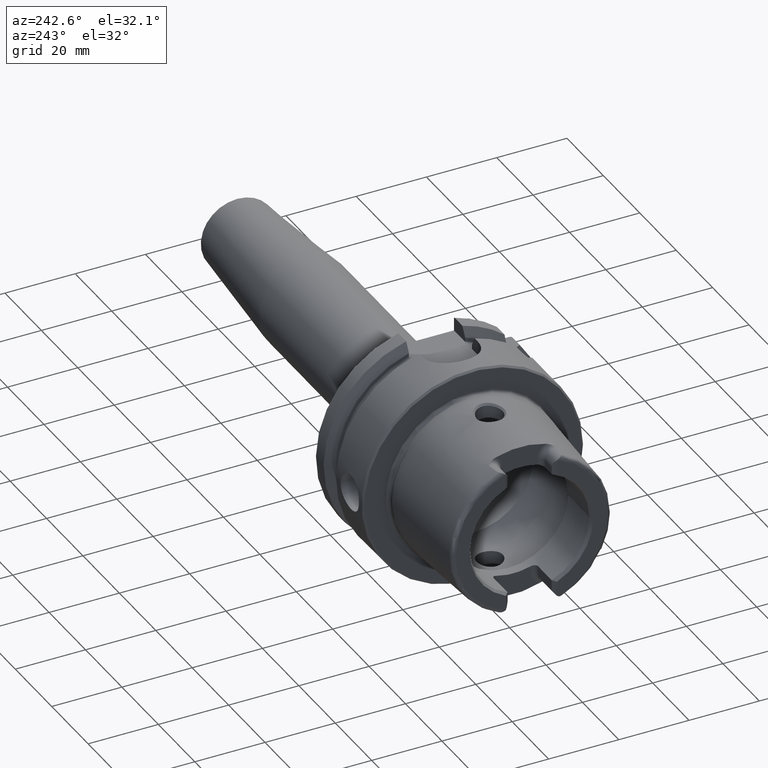
[diagram: clean part render]
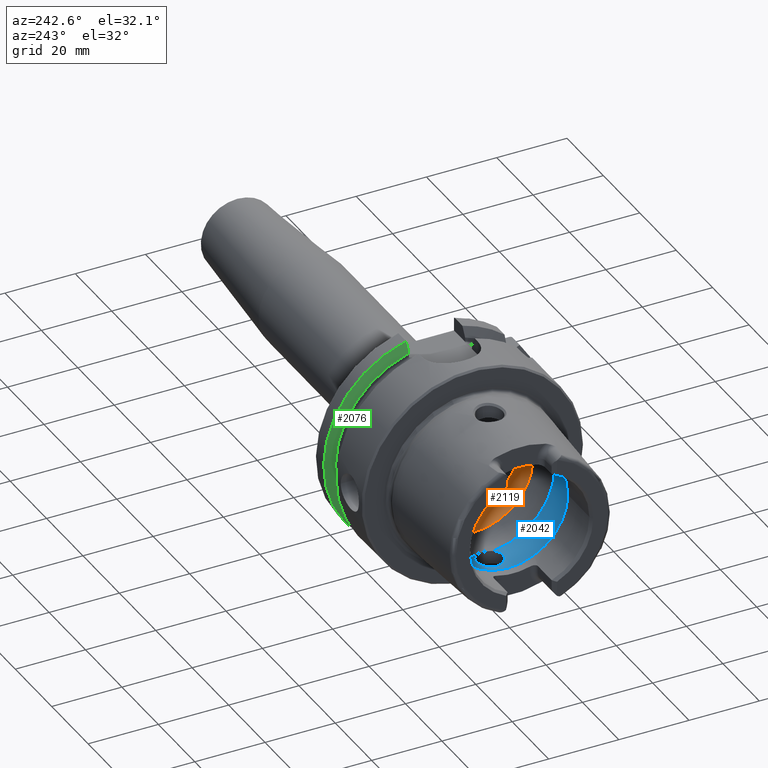
[diagram: same view with three faces highlighted in distinct colors, each labeled with its STEP entity id]
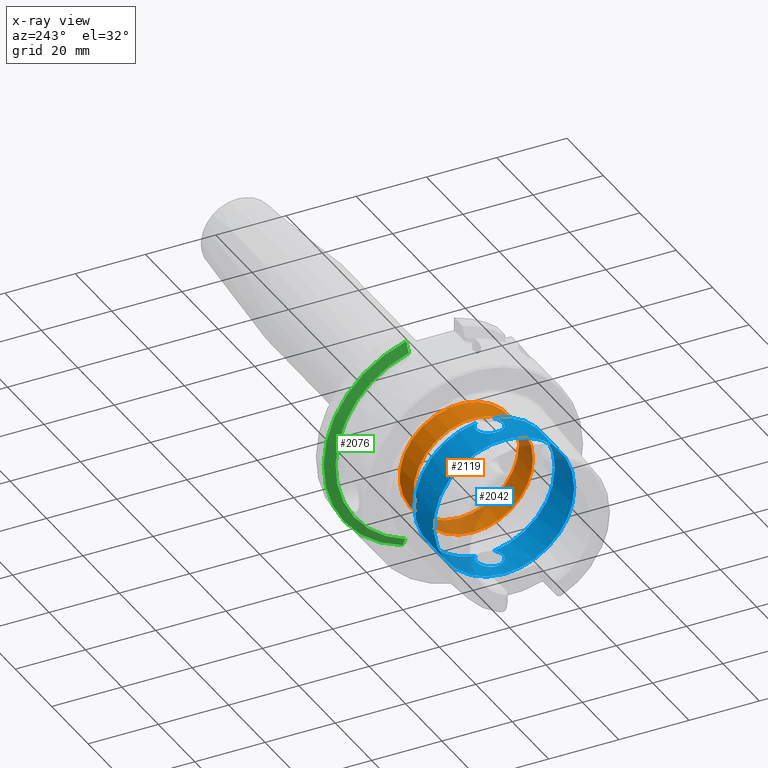
[diagram: x-ray of the same camera — body ghosted, the three highlighted faces saturated]
A machine part, auxiliary view with three faces highlighted in distinct colors.
The next image is the same camera in x-ray (body ghosted, the three faces saturated) — at least one of them is partly hidden behind the body in this view.
Their STEP definitions:

[orange] entity #2119 — the highlighted cylindrical surface (bore or boss wall) has radius 17 mm, axis along (-1, 0, 0).
#212=CYLINDRICAL_SURFACE('',#2389,17.);
#326=FACE_OUTER_BOUND('',#459,.T.);
#459=EDGE_LOOP('',(#1946,#1947,#1948,#1949,#1950,#1951));
#573=LINE('',#4481,#683);
#683=VECTOR('',#2993,17.);
#736=CIRCLE('',#2243,17.);
#737=CIRCLE('',#2244,17.);
#805=CIRCLE('',#2387,17.);
#806=CIRCLE('',#2388,17.);
#918=VERTEX_POINT('',#3835);
#919=VERTEX_POINT('',#3836);
#1016=VERTEX_POINT('',#4475);
#1017=VERTEX_POINT('',#4477);
#1159=EDGE_CURVE('',#918,#919,#736,.T.);
#1160=EDGE_CURVE('',#919,#918,#737,.T.);
#1329=EDGE_CURVE('',#1016,#1017,#805,.T.);
#1330=EDGE_CURVE('',#1017,#1016,#806,.T.);
#1331=EDGE_CURVE('',#1017,#918,#573,.T.);
#1946=ORIENTED_EDGE('',*,*,#1330,.F.);
#1947=ORIENTED_EDGE('',*,*,#1331,.T.);
#1948=ORIENTED_EDGE('',*,*,#1159,.T.);
#1949=ORIENTED_EDGE('',*,*,#1160,.T.);
#1950=ORIENTED_EDGE('',*,*,#1331,.F.);
#1951=ORIENTED_EDGE('',*,*,#1329,.F.);
#2119=ADVANCED_FACE('',(#326),#212,.F.);
#2243=AXIS2_PLACEMENT_3D('',#3837,#2642,#2643);
#2244=AXIS2_PLACEMENT_3D('',#3838,#2644,#2645);
#2387=AXIS2_PLACEMENT_3D('',#4478,#2987,#2988);
#2388=AXIS2_PLACEMENT_3D('',#4479,#2989,#2990);
#2389=AXIS2_PLACEMENT_3D('',#4480,#2991,#2992);
#2642=DIRECTION('center_axis',(-1.,0.,0.));
#2643=DIRECTION('ref_axis',(0.,0.,1.));
#2644=DIRECTION('center_axis',(-1.,0.,0.));
#2645=DIRECTION('ref_axis',(0.,0.,1.));
#2987=DIRECTION('center_axis',(-1.,0.,0.));
#2988=DIRECTION('ref_axis',(0.,0.,1.));
#2989=DIRECTION('center_axis',(-1.,0.,0.));
#2990=DIRECTION('ref_axis',(0.,0.,1.));
#2991=DIRECTION('center_axis',(-1.,0.,0.));
#2992=DIRECTION('ref_axis',(0.,1.,0.));
#2993=DIRECTION('',(-1.,0.,0.));
#3835=CARTESIAN_POINT('',(0.,-17.,2.0818995585505E-15));
#3836=CARTESIAN_POINT('',(0.,-2.0818995585505E-15,-17.));
#3837=CARTESIAN_POINT('Origin',(0.,0.,0.));
#3838=CARTESIAN_POINT('Origin',(0.,0.,0.));
#4475=CARTESIAN_POINT('',(7.67084380241115,-2.0818995585505E-15,-17.));
#4477=CARTESIAN_POINT('',(7.67084380241115,-17.,2.0818995585505E-15));
#4478=CARTESIAN_POINT('Origin',(7.67084380241115,0.,0.));
#4479=CARTESIAN_POINT('Origin',(7.67084380241115,0.,0.));
#4480=CARTESIAN_POINT('Origin',(3.83542190120557,0.,0.));
#4481=CARTESIAN_POINT('',(3.83542190120557,-17.,2.0818995585505E-15));

[blue] entity #2042 — the highlighted cylindrical surface (bore or boss wall) has radius 20 mm, axis along (-1, 0, 0).
#50=B_SPLINE_CURVE_WITH_KNOTS('',3,(#3613,#3614,#3615,#3616,#3617,#3618,
#3619,#3620,#3621,#3622,#3623,#3624,#3625,#3626,#3627,#3628,#3629,#3630,
#3631,#3632,#3633,#3634,#3635,#3636,#3637,#3638,#3639,#3640,#3641,#3642,
#3643),.UNSPECIFIED.,.F.,.F.,(4,2,2,2,2,2,2,2,2,2,2,3,2,2,4),(-1.43107314142755,
-1.4161913421645,-1.27456976724955,-1.1329481923346,-0.991326617419658,
-0.849705042504712,-0.708089569336007,-0.566474096167302,-0.424858622998598,
-0.283243149829893,-0.141621574914946,0.,0.141621574914946,0.283243149829893,
0.298124949100151),.UNSPECIFIED.);
#55=B_SPLINE_CURVE_WITH_KNOTS('',3,(#3782,#3783,#3784,#3785,#3786,#3787,
#3788,#3789,#3790,#3791,#3792,#3793,#3794,#3795,#3796,#3797,#3798,#3799,
#3800,#3801,#3802,#3803,#3804,#3805,#3806,#3807,#3808,#3809,#3810,#3811,
#3812),.UNSPECIFIED.,.F.,.F.,(4,2,2,3,2,2,2,2,2,2,2,2,2,2,4),(-0.298124949092949,
-0.283243149829893,-0.141621574914946,0.,0.141621574914946,0.283243149829893,
0.424858622998598,0.566474096167302,0.708089569336007,0.849705042504712,
0.991326617419658,1.1329481923346,1.27456976724955,1.4161913421645,1.43107314143475),
 .UNSPECIFIED.);
#191=CYLINDRICAL_SURFACE('',#2236,20.);
#249=FACE_OUTER_BOUND('',#378,.T.);
#378=EDGE_LOOP('',(#1536,#1537,#1538,#1539,#1540,#1541,#1542,#1543,#1544));
#515=LINE('',#3828,#625);
#625=VECTOR('',#2631,20.);
#731=CIRCLE('',#2237,20.);
#732=CIRCLE('',#2238,20.);
#733=CIRCLE('',#2239,20.);
#734=CIRCLE('',#2240,20.);
#735=CIRCLE('',#2241,20.);
#908=VERTEX_POINT('',#3599);
#909=VERTEX_POINT('',#3612);
#912=VERTEX_POINT('',#3767);
#914=VERTEX_POINT('',#3781);
#915=VERTEX_POINT('',#3825);
#916=VERTEX_POINT('',#3827);
#917=VERTEX_POINT('',#3829);
#1144=EDGE_CURVE('',#909,#908,#50,.T.);
#1150=EDGE_CURVE('',#914,#912,#55,.T.);
#1153=EDGE_CURVE('',#915,#912,#731,.T.);
#1154=EDGE_CURVE('',#915,#916,#515,.T.);
#1155=EDGE_CURVE('',#916,#917,#732,.T.);
#1156=EDGE_CURVE('',#917,#916,#733,.T.);
#1157=EDGE_CURVE('',#909,#915,#734,.T.);
#1158=EDGE_CURVE('',#914,#908,#735,.T.);
#1536=ORIENTED_EDGE('',*,*,#1150,.T.);
#1537=ORIENTED_EDGE('',*,*,#1153,.F.);
#1538=ORIENTED_EDGE('',*,*,#1154,.T.);
#1539=ORIENTED_EDGE('',*,*,#1155,.T.);
#1540=ORIENTED_EDGE('',*,*,#1156,.T.);
#1541=ORIENTED_EDGE('',*,*,#1154,.F.);
#1542=ORIENTED_EDGE('',*,*,#1157,.F.);
#1543=ORIENTED_EDGE('',*,*,#1144,.T.);
#1544=ORIENTED_EDGE('',*,*,#1158,.F.);
#2042=ADVANCED_FACE('',(#249),#191,.F.);
#2236=AXIS2_PLACEMENT_3D('',#3824,#2627,#2628);
#2237=AXIS2_PLACEMENT_3D('',#3826,#2629,#2630);
#2238=AXIS2_PLACEMENT_3D('',#3830,#2632,#2633);
#2239=AXIS2_PLACEMENT_3D('',#3831,#2634,#2635);
#2240=AXIS2_PLACEMENT_3D('',#3832,#2636,#2637);
#2241=AXIS2_PLACEMENT_3D('',#3833,#2638,#2639);
#2627=DIRECTION('center_axis',(-1.,0.,0.));
#2628=DIRECTION('ref_axis',(0.,1.,0.));
#2629=DIRECTION('center_axis',(-1.,0.,0.));
#2630=DIRECTION('ref_axis',(0.,0.,1.));
#2631=DIRECTION('',(-1.,0.,0.));
#2632=DIRECTION('center_axis',(-1.,0.,0.));
#2633=DIRECTION('ref_axis',(0.,0.,1.));
#2634=DIRECTION('center_axis',(-1.,0.,0.));
#2635=DIRECTION('ref_axis',(0.,0.,1.));
#2636=DIRECTION('center_axis',(-1.,0.,0.));
#2637=DIRECTION('ref_axis',(0.,0.,1.));
#2638=DIRECTION('center_axis',(-1.,0.,0.));
#2639=DIRECTION('ref_axis',(0.,0.,1.));
#3599=CARTESIAN_POINT('',(-6.2449979983984,2.54410376580264,-19.8375284758165));
#3612=CARTESIAN_POINT('',(-6.2449979983984,-2.54410376580264,-19.8375284758165));
#3613=CARTESIAN_POINT('Ctrl Pts',(-6.2449979983984,-2.54410376580264,-19.8375284758165));
#3614=CARTESIAN_POINT('Ctrl Pts',(-6.27894943420456,-2.58086966932454,-19.8328133585216));
#3615=CARTESIAN_POINT('Ctrl Pts',(-6.31342869219743,-2.61672955109653,-19.8281105439642));
#3616=CARTESIAN_POINT('Ctrl Pts',(-6.68067160381732,-2.98397246271642,-19.7789868876592));
#3617=CARTESIAN_POINT('Ctrl Pts',(-7.10159661632629,-3.27238367725626,-19.731429741537));
#3618=CARTESIAN_POINT('Ctrl Pts',(-8.0251754070192,-3.65542701546408,-19.6640704965084));
#3619=CARTESIAN_POINT('Ctrl Pts',(-8.52792808361685,-3.75,-19.6452920568771));
#3620=CARTESIAN_POINT('Ctrl Pts',(-9.47207191638316,-3.75,-19.6452920568771));
#3621=CARTESIAN_POINT('Ctrl Pts',(-9.97482459298081,-3.65542701546408,-19.6640704965084));
#3622=CARTESIAN_POINT('Ctrl Pts',(-10.8984033836737,-3.27238367725626,-19.731429741537));
#3623=CARTESIAN_POINT('Ctrl Pts',(-11.3193283961827,-2.98397246271642,-19.7789868876592));
#3624=CARTESIAN_POINT('Ctrl Pts',(-11.9839581446669,-2.31934271423217,-19.8678900149943));
#3625=CARTESIAN_POINT('Ctrl Pts',(-12.2723805817074,-1.89841159537053,-19.9150796801946));
#3626=CARTESIAN_POINT('Ctrl Pts',(-12.6554320620407,-0.974811677040414,
-19.9815942165963));
#3627=CARTESIAN_POINT('Ctrl Pts',(-12.75,-0.472051577229017,-20.));
#3628=CARTESIAN_POINT('Ctrl Pts',(-12.75,0.472051577229015,-20.));
#3629=CARTESIAN_POINT('Ctrl Pts',(-12.6554320620407,0.974811677040408,-19.9815942165963));
#3630=CARTESIAN_POINT('Ctrl Pts',(-12.2723805817074,1.89841159537052,-19.9150796801946));
#3631=CARTESIAN_POINT('Ctrl Pts',(-11.9839581446669,2.31934271423217,-19.8678900149943));
#3632=CARTESIAN_POINT('Ctrl Pts',(-11.3193283961827,2.98397246271642,-19.7789868876592));
#3633=CARTESIAN_POINT('Ctrl Pts',(-10.8984033836737,3.27238367725626,-19.731429741537));
#3634=CARTESIAN_POINT('Ctrl Pts',(-9.97482459298081,3.65542701546408,-19.6640704965084));
#3635=CARTESIAN_POINT('Ctrl Pts',(-9.47207191638316,3.75,-19.6452920568771));
#3636=CARTESIAN_POINT('Ctrl Pts',(-9.,3.75,-19.6452920568771));
#3637=CARTESIAN_POINT('Ctrl Pts',(-8.52792808361685,3.75,-19.6452920568771));
#3638=CARTESIAN_POINT('Ctrl Pts',(-8.0251754070192,3.65542701546408,-19.6640704965084));
#3639=CARTESIAN_POINT('Ctrl Pts',(-7.10159661632629,3.27238367725626,-19.731429741537));
#3640=CARTESIAN_POINT('Ctrl Pts',(-6.68067160381732,2.98397246271642,-19.7789868876592));
#3641=CARTESIAN_POINT('Ctrl Pts',(-6.31342869218053,2.61672955107963,-19.8281105439665));
#3642=CARTESIAN_POINT('Ctrl Pts',(-6.27894943419011,2.5808696693089,-19.8328133585236));
#3643=CARTESIAN_POINT('Ctrl Pts',(-6.2449979983984,2.54410376580264,-19.8375284758165));
#3767=CARTESIAN_POINT('',(-6.2449979983984,-2.54410376580264,19.8375284758165));
#3781=CARTESIAN_POINT('',(-6.2449979983984,2.54410376580264,19.8375284758165));
#3782=CARTESIAN_POINT('Ctrl Pts',(-6.2449979983984,2.54410376580264,19.8375284758165));
#3783=CARTESIAN_POINT('Ctrl Pts',(-6.27894943420456,2.58086966932454,19.8328133585216));
#3784=CARTESIAN_POINT('Ctrl Pts',(-6.31342869219742,2.61672955109653,19.8281105439642));
#3785=CARTESIAN_POINT('Ctrl Pts',(-6.68067160381731,2.98397246271642,19.7789868876592));
#3786=CARTESIAN_POINT('Ctrl Pts',(-7.10159661632629,3.27238367725626,19.731429741537));
#3787=CARTESIAN_POINT('Ctrl Pts',(-8.02517540701919,3.65542701546408,19.6640704965084));
#3788=CARTESIAN_POINT('Ctrl Pts',(-8.52792808361684,3.75,19.6452920568771));
#3789=CARTESIAN_POINT('Ctrl Pts',(-9.,3.75,19.6452920568771));
#3790=CARTESIAN_POINT('Ctrl Pts',(-9.47207191638315,3.75,19.6452920568771));
#3791=CARTESIAN_POINT('Ctrl Pts',(-9.97482459298081,3.65542701546408,19.6640704965084));
#3792=CARTESIAN_POINT('Ctrl Pts',(-10.8984033836737,3.27238367725626,19.731429741537));
#3793=CARTESIAN_POINT('Ctrl Pts',(-11.3193283961827,2.98397246271642,19.7789868876592));
#3794=CARTESIAN_POINT('Ctrl Pts',(-11.9839581446669,2.31934271423217,19.8678900149943));
#3795=CARTESIAN_POINT('Ctrl Pts',(-12.2723805817074,1.89841159537052,19.9150796801946));
#3796=CARTESIAN_POINT('Ctrl Pts',(-12.6554320620407,0.97481167704041,19.9815942165963));
#3797=CARTESIAN_POINT('Ctrl Pts',(-12.75,0.472051577229015,20.));
#3798=CARTESIAN_POINT('Ctrl Pts',(-12.75,-0.472051577229017,20.));
#3799=CARTESIAN_POINT('Ctrl Pts',(-12.6554320620407,-0.974811677040414,
19.9815942165963));
#3800=CARTESIAN_POINT('Ctrl Pts',(-12.2723805817074,-1.89841159537053,19.9150796801946));
#3801=CARTESIAN_POINT('Ctrl Pts',(-11.9839581446669,-2.31934271423217,19.8678900149943));
#3802=CARTESIAN_POINT('Ctrl Pts',(-11.3193283961827,-2.98397246271642,19.7789868876592));
#3803=CARTESIAN_POINT('Ctrl Pts',(-10.8984033836737,-3.27238367725626,19.731429741537));
#3804=CARTESIAN_POINT('Ctrl Pts',(-9.9748245929808,-3.65542701546408,19.6640704965084));
#3805=CARTESIAN_POINT('Ctrl Pts',(-9.47207191638315,-3.75,19.6452920568771));
#3806=CARTESIAN_POINT('Ctrl Pts',(-8.52792808361684,-3.75,19.6452920568771));
#3807=CARTESIAN_POINT('Ctrl Pts',(-8.02517540701919,-3.65542701546408,19.6640704965084));
#3808=CARTESIAN_POINT('Ctrl Pts',(-7.10159661632629,-3.27238367725626,19.731429741537));
#3809=CARTESIAN_POINT('Ctrl Pts',(-6.68067160381731,-2.98397246271642,19.7789868876592));
#3810=CARTESIAN_POINT('Ctrl Pts',(-6.31342869218052,-2.61672955107963,19.8281105439665));
#3811=CARTESIAN_POINT('Ctrl Pts',(-6.27894943419011,-2.5808696693089,19.8328133585236));
#3812=CARTESIAN_POINT('Ctrl Pts',(-6.2449979983984,-2.54410376580264,19.8375284758165));
#3824=CARTESIAN_POINT('Origin',(-11.5812812165501,0.,0.));
#3825=CARTESIAN_POINT('',(-6.2449979983984,-20.,2.44929359829471E-15));
#3826=CARTESIAN_POINT('Origin',(-6.2449979983984,0.,0.));
#3827=CARTESIAN_POINT('',(-16.9175644347018,-20.,2.44929359829471E-15));
#3828=CARTESIAN_POINT('',(-11.5812812165501,-20.,2.44929359829471E-15));
#3829=CARTESIAN_POINT('',(-16.9175644347018,-2.44929359829471E-15,-20.));
#3830=CARTESIAN_POINT('Origin',(-16.9175644347018,0.,0.));
#3831=CARTESIAN_POINT('Origin',(-16.9175644347018,0.,0.));
#3832=CARTESIAN_POINT('Origin',(-6.2449979983984,0.,0.));
#3833=CARTESIAN_POINT('Origin',(-6.2449979983984,0.,0.));

[green] entity #2076 — the highlighted conical surface has half-angle 60 deg.
#24=(
BOUNDED_CURVE()
B_SPLINE_CURVE(2,(#4059,#4060,#4061),.UNSPECIFIED.,.F.,.F.)
B_SPLINE_CURVE_WITH_KNOTS((3,3),(0.,0.311314369989023),.UNSPECIFIED.)
CURVE()
GEOMETRIC_REPRESENTATION_ITEM()
RATIONAL_B_SPLINE_CURVE((1.,1.00102053193238,1.))
REPRESENTATION_ITEM('')
);
#27=(
BOUNDED_CURVE()
B_SPLINE_CURVE(2,(#4256,#4257,#4258),.UNSPECIFIED.,.F.,.F.)
B_SPLINE_CURVE_WITH_KNOTS((3,3),(0.,0.308905667770379),.UNSPECIFIED.)
CURVE()
GEOMETRIC_REPRESENTATION_ITEM()
RATIONAL_B_SPLINE_CURVE((1.,1.00099999355179,1.))
REPRESENTATION_ITEM('')
);
#283=FACE_OUTER_BOUND('',#412,.T.);
#412=EDGE_LOOP('',(#1720,#1721,#1722,#1723));
#764=CIRCLE('',#2300,31.5);
#768=CIRCLE('',#2308,28.8975952641916);
#958=VERTEX_POINT('',#4056);
#959=VERTEX_POINT('',#4058);
#985=VERTEX_POINT('',#4240);
#988=VERTEX_POINT('',#4254);
#1215=EDGE_CURVE('',#959,#958,#24,.T.);
#1255=EDGE_CURVE('',#959,#985,#764,.T.);
#1262=EDGE_CURVE('',#958,#988,#768,.T.);
#1263=EDGE_CURVE('',#988,#985,#27,.T.);
#1720=ORIENTED_EDGE('',*,*,#1215,.T.);
#1721=ORIENTED_EDGE('',*,*,#1262,.T.);
#1722=ORIENTED_EDGE('',*,*,#1263,.T.);
#1723=ORIENTED_EDGE('',*,*,#1255,.F.);
#1998=CONICAL_SURFACE('',#2307,30.1987976320958,1.0471975511966);
#2076=ADVANCED_FACE('',(#283),#1998,.T.);
#2300=AXIS2_PLACEMENT_3D('',#4241,#2791,#2792);
#2307=AXIS2_PLACEMENT_3D('',#4253,#2808,#2809);
#2308=AXIS2_PLACEMENT_3D('',#4255,#2810,#2811);
#2791=DIRECTION('center_axis',(1.,0.,0.));
#2792=DIRECTION('ref_axis',(0.,0.,-1.));
#2808=DIRECTION('center_axis',(1.,0.,0.));
#2809=DIRECTION('ref_axis',(0.,1.,0.));
#2810=DIRECTION('center_axis',(1.,0.,0.));
#2811=DIRECTION('ref_axis',(0.,0.,-1.));
#4056=CARTESIAN_POINT('',(19.875,9.,-27.4603534582684));
#4058=CARTESIAN_POINT('',(21.3774990747593,9.,-30.1869176962472));
#4059=CARTESIAN_POINT('Ctrl Pts',(21.3774990747593,9.,-30.1869176962472));
#4060=CARTESIAN_POINT('Ctrl Pts',(20.5907174110267,9.,-28.7648946319029));
#4061=CARTESIAN_POINT('Ctrl Pts',(19.875,9.,-27.4603534582684));
#4240=CARTESIAN_POINT('',(21.3774990747593,8.,30.4671954731642));
#4241=CARTESIAN_POINT('Origin',(21.3774990747593,0.,0.));
#4253=CARTESIAN_POINT('Origin',(20.6262495373797,0.,0.));
#4254=CARTESIAN_POINT('',(19.875,8.,27.7681654426977));
#4255=CARTESIAN_POINT('Origin',(19.875,0.,0.));
#4256=CARTESIAN_POINT('Ctrl Pts',(19.875,8.,27.7681654426977));
#4257=CARTESIAN_POINT('Ctrl Pts',(20.5914314297926,8.,29.0595327079868));
#4258=CARTESIAN_POINT('Ctrl Pts',(21.3774990747593,8.,30.4671954731642));